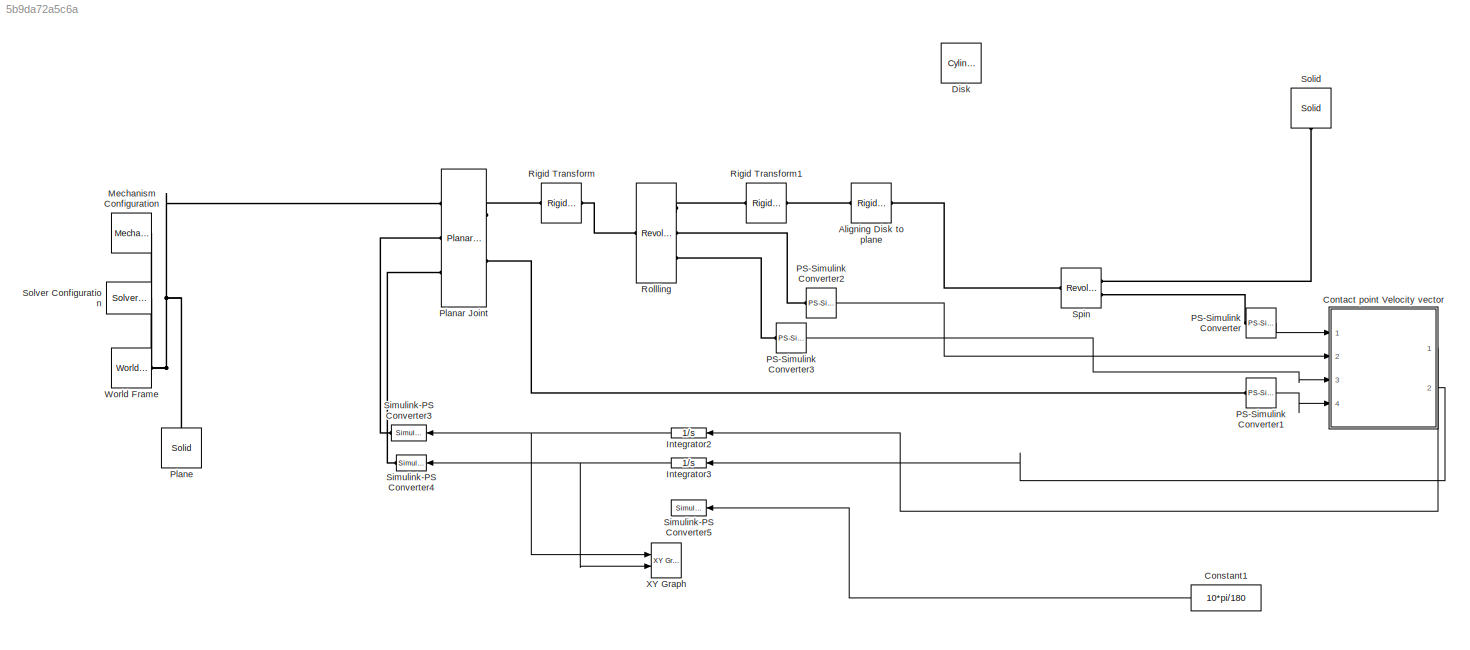
MODEL slx_5b9da72a5c6a
KIND model
CONFIG AbsTol = auto
CONFIG EnableMultiTasking = off
CONFIG FixedStep = auto
CONFIG MaxStep = 1e-1
CONFIG MinStep = auto
CONFIG RelTol = 1e-3
CONFIG SampleTimeConstraint = Unconstrained
CONFIG Solver = VariableStepAuto
CONFIG SolverName = VariableStepAuto
CONFIG StartTime = 0.0
CONFIG StopTime = 50
BLOCK [Reference] Aligning Disk to plane  REF=sm_lib/Frames and
Transforms/Rigid
Transform
  Ports = [0, 0, 0, 0, 0, 1, 1]
  SourceBlock = sm_lib/Frames and\nTransforms/Rigid\nTransform
  SourceProductBaseCode = MS
  SourceProductName = Simscape Multibody
  SourceType = Rigid\nTransform
BLOCK [Constant] Constant1
  Value = 10*pi/180
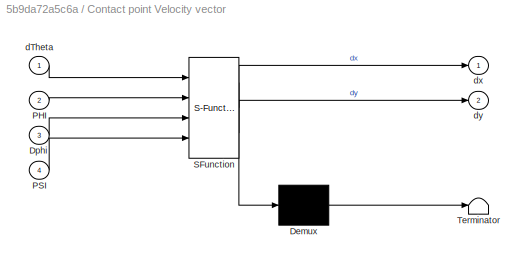
BLOCK [SubSystem] Contact point Velocity vector
  ErrorFcn = Stateflow.Translate.translate
  PermitHierarchicalResolution = ExplicitOnly
  Ports = [4, 2]
  RequestExecContextInheritance = off
  SFBlockType = MATLAB Function
  TreatAsAtomicUnit = on
  Variant = off
BLOCK [Demux] Contact point Velocity vector/ Demux 
  Outputs = 1
  Ports = [1, 1]
BLOCK [S-Function] Contact point Velocity vector/ SFunction 
  EnableBusSupport = on
  FunctionName = sf_sfun
  Parameters = radiusRW
  PortCounts = [4 3]
  Ports = [4, 3]
  SFcnIsStateOwnerBlock = off
  SFunctionDeploymentMode = off
  Tag = Stateflow S-Function InversemotionConstrainedWheel 1
BLOCK [Terminator] Contact point Velocity vector/ Terminator 
BLOCK [Inport] Contact point Velocity vector/Dphi
  IconDisplay = Port number
  Port = 3
BLOCK [Inport] Contact point Velocity vector/PHI
  IconDisplay = Port number
  Port = 2
BLOCK [Inport] Contact point Velocity vector/PSI
  IconDisplay = Port number
  Port = 4
BLOCK [Inport] Contact point Velocity vector/dTheta
  IconDisplay = Port number
BLOCK [Outport] Contact point Velocity vector/dx
  IconDisplay = Port number
BLOCK [Outport] Contact point Velocity vector/dy
  IconDisplay = Port number
  Port = 2
BLOCK [Reference] Disk  REF=Parts_Lib/Cylinder
  Commented = on
  Ports = [0, 0, 0, 0, 0, 1]
  SourceBlock = Parts_Lib/Cylinder
  SourceType = Solid Cylinder with Markings
  Tag = CustomStyle
BLOCK [Integrator] Integrator2
  Ports = [1, 1]
BLOCK [Integrator] Integrator3
  Ports = [1, 1]
BLOCK [Reference] Mechanism Configuration  REF=sm_lib/Utilities/Mechanism
Configuration
  Ports = [0, 0, 0, 0, 0, 0, 1]
  SourceBlock = sm_lib/Utilities/Mechanism\nConfiguration
  SourceProductBaseCode = MS
  SourceProductName = Simscape Multibody
  SourceType = Mechanism\nConfiguration
BLOCK [Reference] PS-Simulink Converter  REF=nesl_utility/PS-Simulink
Converter
  Ports = [0, 1, 0, 0, 0, 1]
  SourceBlock = nesl_utility/PS-Simulink\nConverter
  SourceProductBaseCode = SS
  SourceProductName = Simscape
  SourceType = PS-Simulink\nConverter
BLOCK [Reference] PS-Simulink Converter1  REF=nesl_utility/PS-Simulink
Converter
  Ports = [0, 1, 0, 0, 0, 1]
  SourceBlock = nesl_utility/PS-Simulink\nConverter
  SourceProductBaseCode = SS
  SourceProductName = Simscape
  SourceType = PS-Simulink\nConverter
BLOCK [Reference] PS-Simulink Converter2  REF=nesl_utility/PS-Simulink
Converter
  Ports = [0, 1, 0, 0, 0, 1]
  SourceBlock = nesl_utility/PS-Simulink\nConverter
  SourceProductBaseCode = SS
  SourceProductName = Simscape
  SourceType = PS-Simulink\nConverter
BLOCK [Reference] PS-Simulink Converter3  REF=nesl_utility/PS-Simulink
Converter
  Ports = [0, 1, 0, 0, 0, 1]
  SourceBlock = nesl_utility/PS-Simulink\nConverter
  SourceProductBaseCode = SS
  SourceProductName = Simscape
  SourceType = PS-Simulink\nConverter
BLOCK [Reference] Planar Joint  REF=sm_lib/Joints/Planar Joint
  Ports = [0, 0, 0, 0, 0, 3, 2]
  SourceBlock = sm_lib/Joints/Planar Joint
  SourceProductBaseCode = MS
  SourceProductName = Simscape Multibody
  SourceType = Planar Joint
BLOCK [Reference] Plane  REF=sm_lib/Body Elements/Solid
  Ports = [0, 0, 0, 0, 0, 0, 1]
  SourceBlock = sm_lib/Body Elements/Solid
  SourceProductBaseCode = MS
  SourceProductName = Simscape Multibody
  SourceType = Solid
BLOCK [Reference] Rigid Transform  REF=sm_lib/Frames and
Transforms/Rigid
Transform
  Ports = [0, 0, 0, 0, 0, 1, 1]
  SourceBlock = sm_lib/Frames and\nTransforms/Rigid\nTransform
  SourceProductBaseCode = MS
  SourceProductName = Simscape Multibody
  SourceType = Rigid\nTransform
BLOCK [Reference] Rigid Transform1  REF=sm_lib/Frames and
Transforms/Rigid
Transform
  Ports = [0, 0, 0, 0, 0, 1, 1]
  SourceBlock = sm_lib/Frames and\nTransforms/Rigid\nTransform
  SourceProductBaseCode = MS
  SourceProductName = Simscape Multibody
  SourceType = Rigid\nTransform
BLOCK [Reference] Rollling  REF=sm_lib/Joints/Revolute Joint
  Ports = [0, 0, 0, 0, 0, 1, 3]
  SourceBlock = sm_lib/Joints/Revolute Joint
  SourceProductBaseCode = MS
  SourceProductName = Simscape Multibody
  SourceType = Revolute Joint
BLOCK [Reference] Simulink-PS Converter3  REF=nesl_utility/Simulink-PS
Converter
  Ports = [1, 0, 0, 0, 0, 0, 1]
  SourceBlock = nesl_utility/Simulink-PS\nConverter
  SourceProductBaseCode = SS
  SourceProductName = Simscape
  SourceType = Simulink-PS\nConverter
BLOCK [Reference] Simulink-PS Converter4  REF=nesl_utility/Simulink-PS
Converter
  Ports = [1, 0, 0, 0, 0, 0, 1]
  SourceBlock = nesl_utility/Simulink-PS\nConverter
  SourceProductBaseCode = SS
  SourceProductName = Simscape
  SourceType = Simulink-PS\nConverter
BLOCK [Reference] Simulink-PS Converter5  REF=nesl_utility/Simulink-PS
Converter
  Ports = [1, 0, 0, 0, 0, 0, 1]
  SourceBlock = nesl_utility/Simulink-PS\nConverter
  SourceProductBaseCode = SS
  SourceProductName = Simscape
  SourceType = Simulink-PS\nConverter
BLOCK [Reference] Solid  REF=sm_lib/Body Elements/Solid
  Ports = [0, 0, 0, 0, 0, 0, 1]
  SourceBlock = sm_lib/Body Elements/Solid
  SourceProductBaseCode = MS
  SourceProductName = Simscape Multibody
  SourceType = Solid
BLOCK [Reference] Solver Configuration  REF=nesl_utility/Solver
Configuration
  Ports = [0, 0, 0, 0, 0, 0, 1]
  SourceBlock = nesl_utility/Solver\nConfiguration
  SourceProductBaseCode = SS
  SourceProductName = Simscape
  SourceType = Solver\nConfiguration
BLOCK [Reference] Spin  REF=sm_lib/Joints/Revolute Joint
  Ports = [0, 0, 0, 0, 0, 1, 2]
  SourceBlock = sm_lib/Joints/Revolute Joint
  SourceProductBaseCode = MS
  SourceProductName = Simscape Multibody
  SourceType = Revolute Joint
BLOCK [Reference] World Frame  REF=sm_lib/Frames and
Transforms/World Frame
  Ports = [0, 0, 0, 0, 0, 0, 1]
  SourceBlock = sm_lib/Frames and\nTransforms/World Frame
  SourceProductBaseCode = MS
  SourceProductName = Simscape Multibody
  SourceType = World Frame
BLOCK [Reference] XY Graph  REF=simulink/Sinks/XY Graph
  Ports = [2]
  SourceBlock = simulink/Sinks/XY Graph
  SourceProductBaseCode = SL
  SourceProductName = Simulink
  SourceType = XY scope.
LINE Constant1:1 -> Simulink-PS Converter5:1
LINE Contact point Velocity vector:1 -> Integrator2:1
LINE Contact point Velocity vector:2 -> Integrator3:1
NET Integrator2:1 -> Simulink-PS Converter3:1, XY Graph:1
NET Integrator3:1 -> Simulink-PS Converter4:1, XY Graph:2
LINE PS-Simulink Converter1:1 -> Contact point Velocity vector:4
LINE PS-Simulink Converter2:1 -> Contact point Velocity vector:2
LINE PS-Simulink Converter3:1 -> Contact point Velocity vector:3
LINE PS-Simulink Converter:1 -> Contact point Velocity vector:1
PLINE Aligning Disk to plane:LConn1 -- Rigid Transform1:RConn1
PLINE Aligning Disk to plane:RConn1 -- Spin:LConn1
PNET net1: Mechanism Configuration:RConn1 -- Planar Joint:LConn1 -- Plane:RConn1 -- Solver Configuration:RConn1 -- World Frame:RConn1
PLINE PS-Simulink Converter1:LConn1 -- Planar Joint:RConn2
PLINE PS-Simulink Converter2:LConn1 -- Rollling:RConn2
PLINE PS-Simulink Converter3:LConn1 -- Rollling:RConn3
PLINE PS-Simulink Converter:LConn1 -- Spin:RConn2
PLINE Planar Joint:LConn2 -- Simulink-PS Converter3:RConn1
PLINE Planar Joint:LConn3 -- Simulink-PS Converter4:RConn1
PLINE Planar Joint:RConn1 -- Rigid Transform:LConn1
PLINE Rigid Transform1:LConn1 -- Rollling:RConn1
PLINE Rigid Transform:RConn1 -- Rollling:LConn1
PLINE Solid:RConn1 -- Spin:RConn1
note: NET lines group one-source signal fan-out (src -> all destinations, sorted); 1:1 wires keep LINE; PNET lines group multi-terminal physical nets as a canonical sorted terminal list (undirected conserving connections); 2-terminal nets keep the pairwise PLINE form
CHART Contact point
Velocity vector states=1 transitions=1
  STATE_LABEL 'eML_blk_kernel()'
  STATE_LABEL 'SCRIPT:\nfunction [dx,dy] = Velocity(dTheta,PHI, Dphi, PSI,radiusRW)\nv = -dTheta*radiusRW;\n% dx = cos(Psi)*v;\n% dy = sin(Psi)*v;\n% dy = -radiusRW*cos(PHI)*(Dphi + dTheta*sin(Psi));\nR = radiusRW;\nphi = PHI;\npsi = PSI;\nDtheta = -dTheta;\ndx = Dtheta*R*cos(psi)*cos(PSI) + R*cos(phi)*sin(psi)*cos(PHI)*(Dphi + Dtheta*sin(PSI)) + R*sin(phi)*sin(psi)*sin(PHI)*(Dphi + Dtheta*sin(PSI));\ndy = Dtheta*R*sin(psi...<+128ch>'
